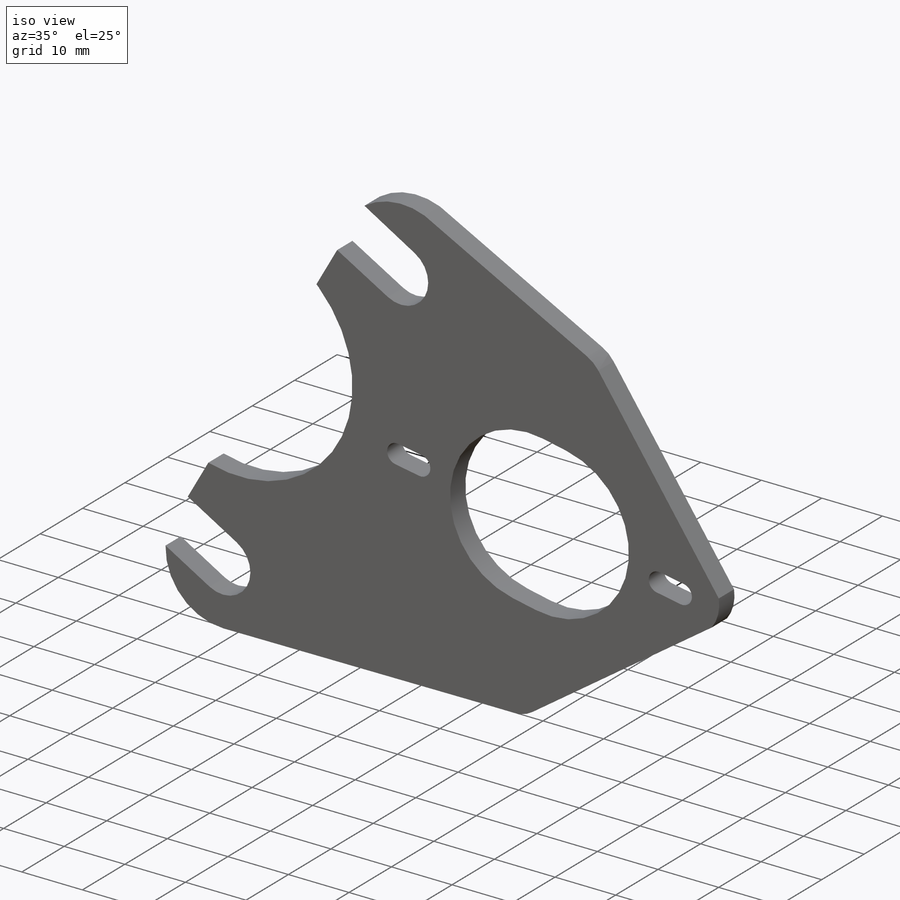
[diagram: iso view]
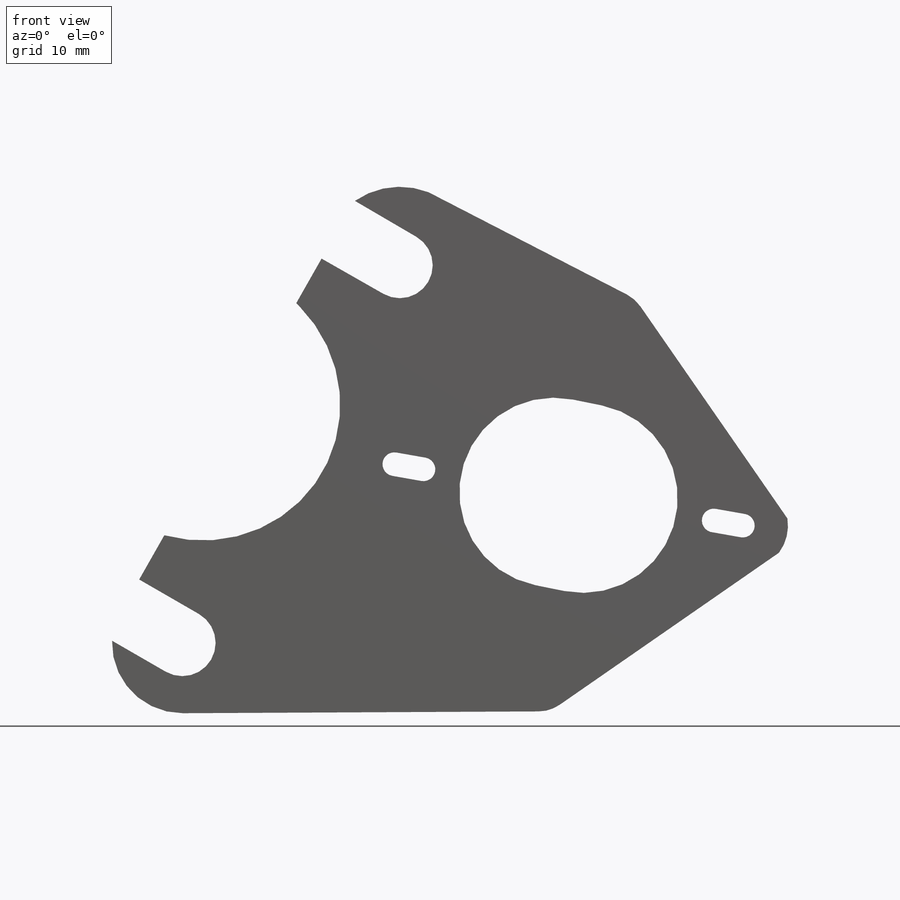
[diagram: front view]
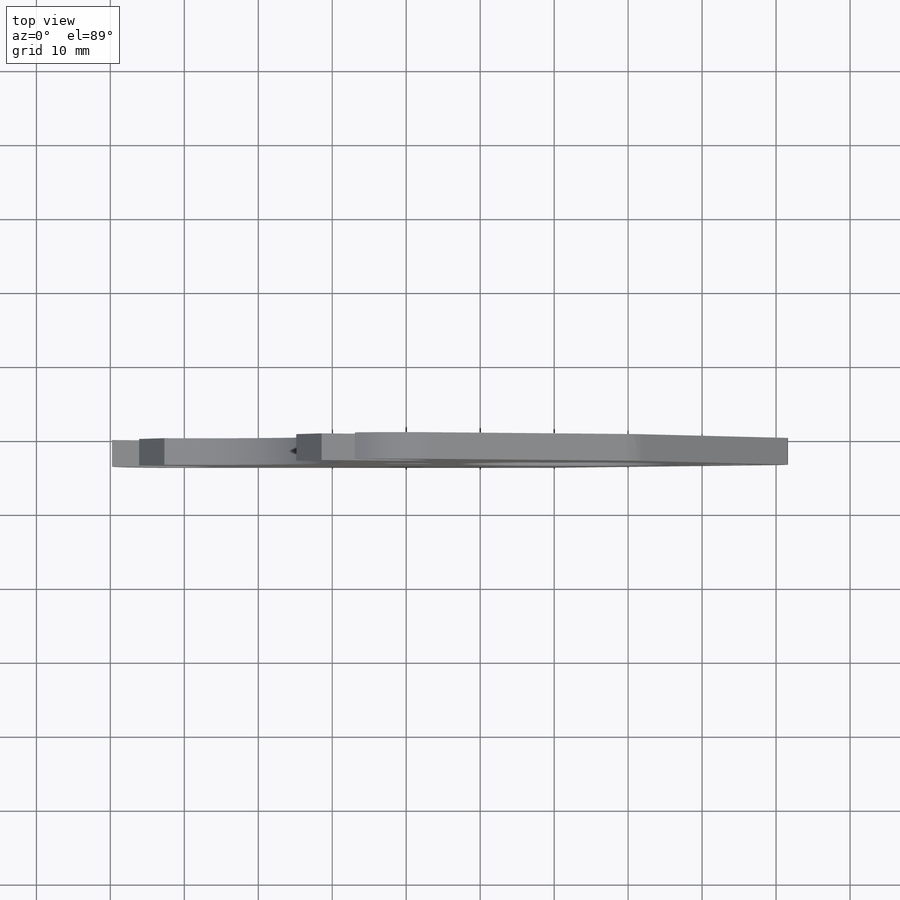
[diagram: top view]
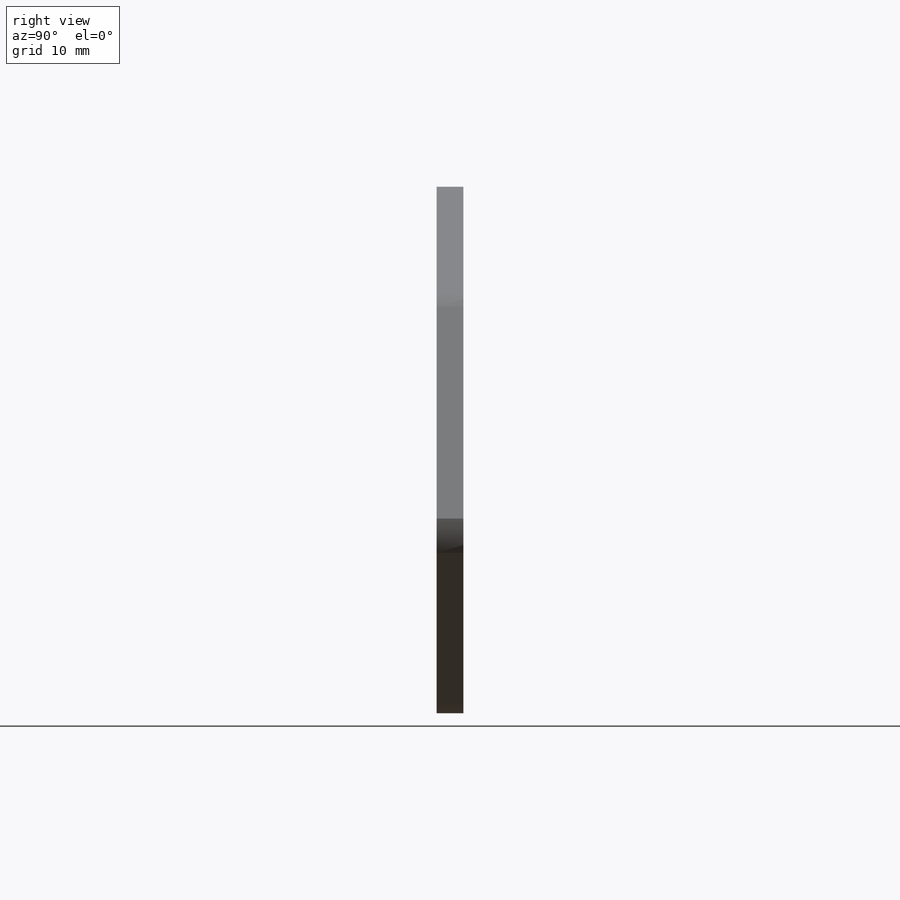
[diagram: right view]
SOLIDWORKS PART (.sldprt)
format: sldprt  version: not decoded by parser v0  size: 285,696 bytes
history: native  units: mm
features: sketch x4, extrude x2, cut_extrude x2, fillet x2, material x1 (+12 scaffold rows collapsed)
feature tree (23):
  scaffold x12  (default folders/planes/origin — collapsed)
  material  "Material <not specified>"
  sketch  "Model"  dims[c1.D1=3.2mm c1.D2=3.2mm c1.D3=3.2mm c1.D4=3.2mm c1.D5=3.2mm c1.D6=25.6mm c1.D7=25.6mm c1.D8=25.6mm c2.D1=170.0deg c2.D2=21.0mm c3.D1=~21.587856mm c3.D4=4.0mm c3.D5=4.0mm c3.D8=4.0mm c3.D6=21.0mm]
  extrude  "Boss-Extrude1"  Depth=3.6mm
  sketch  "Sketch1"
  cut_extrude  "Cut-Extrude1"  Depth=10mm
  sketch  "Sketch2"  dims[D1=0.0mm]
  extrude  "Boss-Extrude2"  Depth=3.6mm
  fillet  "Fillet2"  Radius=5mm
  fillet  "Fillet3"  Radius=5mm
  sketch  "Sketch4"
  cut_extrude  "Cut-Extrude4"  Depth=10mm
decode coverage: 8 of 10 modeling features carry decoded parameters
note: ~ marks probable driven/reference dimensions
note: suppression state not decoded; provenance and decode notes live in map.json
